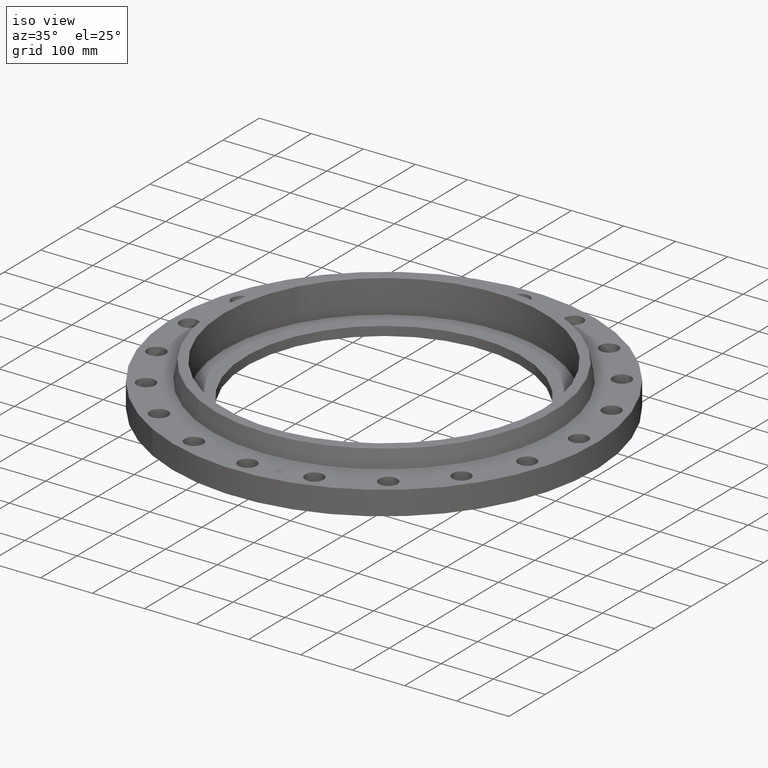
[diagram: clean part render]
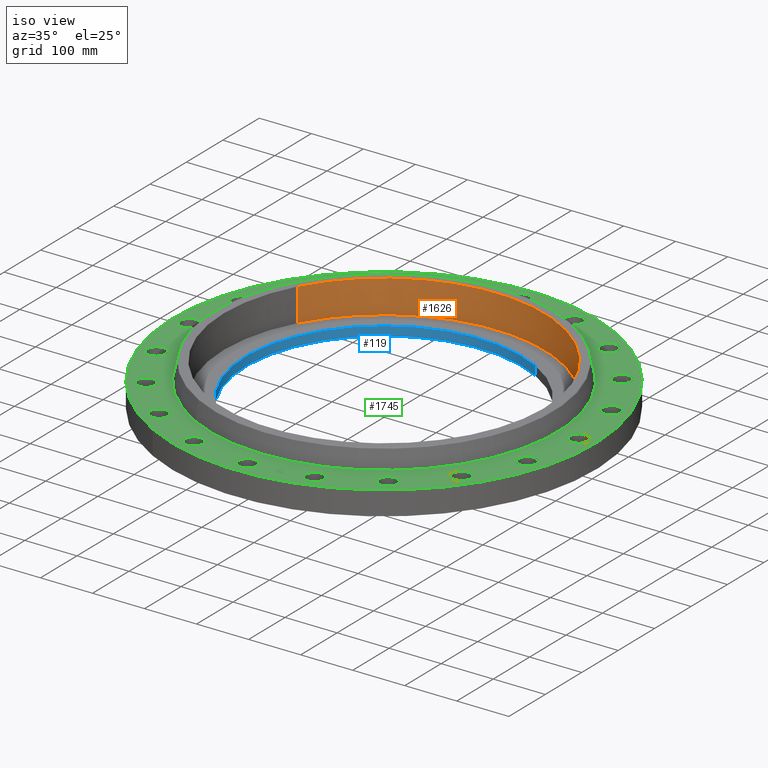
[diagram: same view with three faces highlighted in distinct colors, each labeled with its STEP entity id]
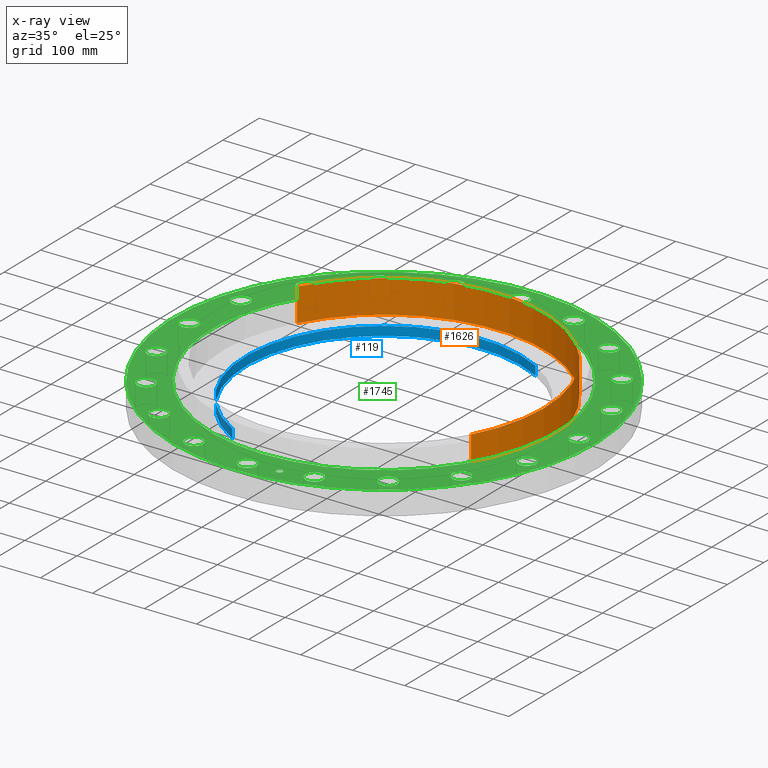
[diagram: x-ray of the same camera — body ghosted, the three highlighted faces saturated]
A machine part, iso view with three faces highlighted in distinct colors.
The next image is the same camera in x-ray (body ghosted, the three faces saturated) — at least one of them is partly hidden behind the body in this view.
Their STEP definitions:

[orange] entity #1626 — the highlighted cylindrical surface (partial cylindrical patch) has radius 307.975 mm, axis along (0, 0, -1).
#42=AXIS2_PLACEMENT_3D('Circle Axis2P3D',#40,#41,$) ;
#728=AXIS2_PLACEMENT_3D('Circle Axis2P3D',#726,#727,$) ;
#1608=AXIS2_PLACEMENT_3D('Cylinder Axis2P3D',#1605,#1606,#1607) ;
#40=CARTESIAN_POINT('Axis2P3D Location',(0.,-6.99353086378E-017,0.690000000003)) ;
#44=CARTESIAN_POINT('Vertex',(-10.640688563,5.8130346556,0.690000000003)) ;
#46=CARTESIAN_POINT('Vertex',(10.640688563,-5.8130346556,0.690000000003)) ;
#726=CARTESIAN_POINT('Axis2P3D Location',(2.79741234551E-016,0.,3.19000000001)) ;
#730=CARTESIAN_POINT('Vertex',(-10.640688563,5.8130346556,3.19000000001)) ;
#732=CARTESIAN_POINT('Vertex',(10.640688563,-5.8130346556,3.19000000001)) ;
#1605=CARTESIAN_POINT('Axis2P3D Location',(0.,-6.99353086378E-017,3.18606299214)) ;
#1610=CARTESIAN_POINT('Line Origine',(-10.640688563,5.8130346556,1.94000000001)) ;
#1615=CARTESIAN_POINT('Line Origine',(10.640688563,-5.8130346556,1.94000000001)) ;
#41=DIRECTION('Axis2P3D Direction',(0.,0.,-0.0393700787402)) ;
#727=DIRECTION('Axis2P3D Direction',(0.,0.,-0.0393700787402)) ;
#1606=DIRECTION('Axis2P3D Direction',(0.,0.,-0.0393700787402)) ;
#1607=DIRECTION('Axis2P3D XDirection',(0.0345504945626,-0.0188750212049,0.)) ;
#1611=DIRECTION('Vector Direction',(0.,0.,-0.0393700787402)) ;
#1616=DIRECTION('Vector Direction',(0.,0.,-0.0393700787402)) ;
#1612=VECTOR('Line Direction',#1611,0.0393700787402) ;
#1617=VECTOR('Line Direction',#1616,0.0393700787402) ;
#1621=ORIENTED_EDGE('',*,*,#734,.F.) ;
#1622=ORIENTED_EDGE('',*,*,#1614,.F.) ;
#1623=ORIENTED_EDGE('',*,*,#48,.T.) ;
#1624=ORIENTED_EDGE('',*,*,#1619,.T.) ;
#1626=ADVANCED_FACE('PartBody',(#1625),#1609,.F.) ;
#43=CIRCLE('generated circle',#42,12.125) ;
#729=CIRCLE('generated circle',#728,12.125) ;
#1609=CYLINDRICAL_SURFACE('generated cylinder',#1608,12.125) ;
#48=EDGE_CURVE('',#45,#47,#43,.T.) ;
#734=EDGE_CURVE('',#731,#733,#729,.T.) ;
#1614=EDGE_CURVE('',#45,#731,#1613,.F.) ;
#1619=EDGE_CURVE('',#47,#733,#1618,.F.) ;
#1620=EDGE_LOOP('',(#1621,#1622,#1623,#1624)) ;
#1625=FACE_OUTER_BOUND('',#1620,.T.) ;
#1613=LINE('Line',#1610,#1612) ;
#1618=LINE('Line',#1615,#1617) ;
#45=VERTEX_POINT('',#44) ;
#47=VERTEX_POINT('',#46) ;
#731=VERTEX_POINT('',#730) ;
#733=VERTEX_POINT('',#732) ;

[blue] entity #119 — the highlighted cylindrical surface (partial cylindrical patch) has radius 265.913 mm, axis along (0, 0, -1).
#60=AXIS2_PLACEMENT_3D('Circle Axis2P3D',#58,#59,$) ;
#80=AXIS2_PLACEMENT_3D('Cylinder Axis2P3D',#77,#78,#79) ;
#110=AXIS2_PLACEMENT_3D('Circle Axis2P3D',#108,#109,$) ;
#58=CARTESIAN_POINT('Axis2P3D Location',(3.35689481461E-015,1.32877086412E-015,0.690000000003)) ;
#62=CARTESIAN_POINT('Vertex',(-5.01910596367,-9.18741184047,0.690000000003)) ;
#64=CARTESIAN_POINT('Vertex',(5.01910596367,9.18741184047,0.690000000003)) ;
#77=CARTESIAN_POINT('Axis2P3D Location',(0.,0.,1.59500000001)) ;
#82=CARTESIAN_POINT('Line Origine',(5.01910596367,9.18741184047,0.345000000001)) ;
#86=CARTESIAN_POINT('Vertex',(5.01910596367,9.18741184047,-9.00766775255E-014)) ;
#93=CARTESIAN_POINT('Vertex',(-5.01910596367,-9.18741184047,-9.00766775255E-014)) ;
#96=CARTESIAN_POINT('Line Origine',(-5.01910596367,-9.18741184047,0.345000000001)) ;
#108=CARTESIAN_POINT('Axis2P3D Location',(0.,0.,-9.00766775255E-014)) ;
#59=DIRECTION('Axis2P3D Direction',(0.,0.,-0.0393700787402)) ;
#78=DIRECTION('Axis2P3D Direction',(0.,0.,-0.0393700787402)) ;
#79=DIRECTION('Axis2P3D XDirection',(-0.0188750212049,-0.0345504945626,0.)) ;
#83=DIRECTION('Vector Direction',(0.,0.,-0.0393700787402)) ;
#97=DIRECTION('Vector Direction',(0.,0.,-0.0393700787402)) ;
#109=DIRECTION('Axis2P3D Direction',(0.,0.,-0.0393700787402)) ;
#84=VECTOR('Line Direction',#83,0.0393700787402) ;
#98=VECTOR('Line Direction',#97,0.0393700787402) ;
#114=ORIENTED_EDGE('',*,*,#100,.T.) ;
#115=ORIENTED_EDGE('',*,*,#112,.T.) ;
#116=ORIENTED_EDGE('',*,*,#88,.F.) ;
#117=ORIENTED_EDGE('',*,*,#66,.F.) ;
#119=ADVANCED_FACE('PartBody',(#118),#81,.F.) ;
#61=CIRCLE('generated circle',#60,10.469) ;
#111=CIRCLE('generated circle',#110,10.469) ;
#81=CYLINDRICAL_SURFACE('generated cylinder',#80,10.469) ;
#66=EDGE_CURVE('',#63,#65,#61,.T.) ;
#88=EDGE_CURVE('',#65,#87,#85,.T.) ;
#100=EDGE_CURVE('',#63,#94,#99,.T.) ;
#112=EDGE_CURVE('',#94,#87,#111,.T.) ;
#113=EDGE_LOOP('',(#114,#115,#116,#117)) ;
#118=FACE_OUTER_BOUND('',#113,.T.) ;
#85=LINE('Line',#82,#84) ;
#99=LINE('Line',#96,#98) ;
#63=VERTEX_POINT('',#62) ;
#65=VERTEX_POINT('',#64) ;
#87=VERTEX_POINT('',#86) ;
#94=VERTEX_POINT('',#93) ;

[green] entity #1745 — the highlighted planar face has unit normal (0, 0, -1).
#545=AXIS2_PLACEMENT_3D('Circle Axis2P3D',#543,#544,$) ;
#564=AXIS2_PLACEMENT_3D('Circle Axis2P3D',#562,#563,$) ;
#581=AXIS2_PLACEMENT_3D('Circle Axis2P3D',#579,#580,$) ;
#616=AXIS2_PLACEMENT_3D('Circle Axis2P3D',#614,#615,$) ;
#766=AXIS2_PLACEMENT_3D('Circle Axis2P3D',#764,#765,$) ;
#778=AXIS2_PLACEMENT_3D('Circle Axis2P3D',#776,#777,$) ;
#809=AXIS2_PLACEMENT_3D('Circle Axis2P3D',#807,#808,$) ;
#821=AXIS2_PLACEMENT_3D('Circle Axis2P3D',#819,#820,$) ;
#852=AXIS2_PLACEMENT_3D('Circle Axis2P3D',#850,#851,$) ;
#864=AXIS2_PLACEMENT_3D('Circle Axis2P3D',#862,#863,$) ;
#895=AXIS2_PLACEMENT_3D('Circle Axis2P3D',#893,#894,$) ;
#907=AXIS2_PLACEMENT_3D('Circle Axis2P3D',#905,#906,$) ;
#938=AXIS2_PLACEMENT_3D('Circle Axis2P3D',#936,#937,$) ;
#950=AXIS2_PLACEMENT_3D('Circle Axis2P3D',#948,#949,$) ;
#981=AXIS2_PLACEMENT_3D('Circle Axis2P3D',#979,#980,$) ;
#993=AXIS2_PLACEMENT_3D('Circle Axis2P3D',#991,#992,$) ;
#1024=AXIS2_PLACEMENT_3D('Circle Axis2P3D',#1022,#1023,$) ;
#1036=AXIS2_PLACEMENT_3D('Circle Axis2P3D',#1034,#1035,$) ;
#1067=AXIS2_PLACEMENT_3D('Circle Axis2P3D',#1065,#1066,$) ;
#1079=AXIS2_PLACEMENT_3D('Circle Axis2P3D',#1077,#1078,$) ;
#1110=AXIS2_PLACEMENT_3D('Circle Axis2P3D',#1108,#1109,$) ;
#1122=AXIS2_PLACEMENT_3D('Circle Axis2P3D',#1120,#1121,$) ;
#1153=AXIS2_PLACEMENT_3D('Circle Axis2P3D',#1151,#1152,$) ;
#1165=AXIS2_PLACEMENT_3D('Circle Axis2P3D',#1163,#1164,$) ;
#1196=AXIS2_PLACEMENT_3D('Circle Axis2P3D',#1194,#1195,$) ;
#1208=AXIS2_PLACEMENT_3D('Circle Axis2P3D',#1206,#1207,$) ;
#1239=AXIS2_PLACEMENT_3D('Circle Axis2P3D',#1237,#1238,$) ;
#1251=AXIS2_PLACEMENT_3D('Circle Axis2P3D',#1249,#1250,$) ;
#1282=AXIS2_PLACEMENT_3D('Circle Axis2P3D',#1280,#1281,$) ;
#1294=AXIS2_PLACEMENT_3D('Circle Axis2P3D',#1292,#1293,$) ;
#1325=AXIS2_PLACEMENT_3D('Circle Axis2P3D',#1323,#1324,$) ;
#1337=AXIS2_PLACEMENT_3D('Circle Axis2P3D',#1335,#1336,$) ;
#1368=AXIS2_PLACEMENT_3D('Circle Axis2P3D',#1366,#1367,$) ;
#1380=AXIS2_PLACEMENT_3D('Circle Axis2P3D',#1378,#1379,$) ;
#1411=AXIS2_PLACEMENT_3D('Circle Axis2P3D',#1409,#1410,$) ;
#1423=AXIS2_PLACEMENT_3D('Circle Axis2P3D',#1421,#1422,$) ;
#1454=AXIS2_PLACEMENT_3D('Circle Axis2P3D',#1452,#1453,$) ;
#1466=AXIS2_PLACEMENT_3D('Circle Axis2P3D',#1464,#1465,$) ;
#1497=AXIS2_PLACEMENT_3D('Circle Axis2P3D',#1495,#1496,$) ;
#1509=AXIS2_PLACEMENT_3D('Circle Axis2P3D',#1507,#1508,$) ;
#1540=AXIS2_PLACEMENT_3D('Circle Axis2P3D',#1538,#1539,$) ;
#1552=AXIS2_PLACEMENT_3D('Circle Axis2P3D',#1550,#1551,$) ;
#1583=AXIS2_PLACEMENT_3D('Circle Axis2P3D',#1581,#1582,$) ;
#1595=AXIS2_PLACEMENT_3D('Circle Axis2P3D',#1593,#1594,$) ;
#1637=AXIS2_PLACEMENT_3D('Plane Axis2P3D',#1634,#1635,#1636) ;
#1729=AXIS2_PLACEMENT_3D('Circle Axis2P3D',#1727,#1728,$) ;
#1738=AXIS2_PLACEMENT_3D('Circle Axis2P3D',#1736,#1737,$) ;
#540=CARTESIAN_POINT('Vertex',(-7.6708086177,-14.0413209903,1.81000000001)) ;
#543=CARTESIAN_POINT('Axis2P3D Location',(0.,0.,1.81000000001)) ;
#547=CARTESIAN_POINT('Vertex',(7.6708086177,14.0413209903,1.81000000001)) ;
#562=CARTESIAN_POINT('Axis2P3D Location',(0.,0.,1.81000000001)) ;
#579=CARTESIAN_POINT('Axis2P3D Location',(0.,0.,1.81000000001)) ;
#583=CARTESIAN_POINT('Vertex',(6.28543468175,11.5054110106,1.81000000001)) ;
#585=CARTESIAN_POINT('Vertex',(-6.28543468175,-11.5054110106,1.81000000001)) ;
#614=CARTESIAN_POINT('Axis2P3D Location',(0.,0.,1.81000000001)) ;
#754=CARTESIAN_POINT('Vertex',(14.70620268,4.43050739573,1.81000000001)) ;
#761=CARTESIAN_POINT('Vertex',(13.3499645508,4.68549393836,1.81000000001)) ;
#764=CARTESIAN_POINT('Axis2P3D Location',(14.0280836154,4.55800066705,1.81000000001)) ;
#776=CARTESIAN_POINT('Axis2P3D Location',(14.0280836154,4.55800066705,1.81000000001)) ;
#797=CARTESIAN_POINT('Vertex',(12.6173278098,8.75812948005,1.81000000001)) ;
#804=CARTESIAN_POINT('Vertex',(11.2486735244,8.58153546265,1.81000000001)) ;
#807=CARTESIAN_POINT('Axis2P3D Location',(11.9330006671,8.66983247135,1.81000000001)) ;
#819=CARTESIAN_POINT('Axis2P3D Location',(11.9330006671,8.66983247135,1.81000000001)) ;
#840=CARTESIAN_POINT('Vertex',(9.29338098346,12.2284448294,1.81000000001)) ;
#847=CARTESIAN_POINT('Vertex',(8.04628395923,11.6375565048,1.81000000001)) ;
#850=CARTESIAN_POINT('Axis2P3D Location',(8.66983247135,11.9330006671,1.81000000001)) ;
#862=CARTESIAN_POINT('Axis2P3D Location',(8.66983247135,11.9330006671,1.81000000001)) ;
#883=CARTESIAN_POINT('Vertex',(5.05973327568,14.5017547982,1.81000000001)) ;
#890=CARTESIAN_POINT('Vertex',(4.05626805842,13.5544124326,1.81000000001)) ;
#893=CARTESIAN_POINT('Axis2P3D Location',(4.55800066705,14.0280836154,1.81000000001)) ;
#905=CARTESIAN_POINT('Axis2P3D Location',(4.55800066705,14.0280836154,1.81000000001)) ;
#926=CARTESIAN_POINT('Vertex',(0.330803621638,15.3555319678,1.81000000001)) ;
#933=CARTESIAN_POINT('Vertex',(-0.330803621638,14.1444680324,1.81000000001)) ;
#936=CARTESIAN_POINT('Axis2P3D Location',(-1.58101627338E-014,14.7500000001,1.81000000001)) ;
#948=CARTESIAN_POINT('Axis2P3D Location',(-1.58101627338E-014,14.7500000001,1.81000000001)) ;
#969=CARTESIAN_POINT('Vertex',(-4.43050739573,14.70620268,1.81000000001)) ;
#976=CARTESIAN_POINT('Vertex',(-4.68549393836,13.3499645508,1.81000000001)) ;
#979=CARTESIAN_POINT('Axis2P3D Location',(-4.55800066705,14.0280836154,1.81000000001)) ;
#991=CARTESIAN_POINT('Axis2P3D Location',(-4.55800066705,14.0280836154,1.81000000001)) ;
#1012=CARTESIAN_POINT('Vertex',(-8.75812948005,12.6173278098,1.81000000001)) ;
#1019=CARTESIAN_POINT('Vertex',(-8.58153546265,11.2486735244,1.81000000001)) ;
#1022=CARTESIAN_POINT('Axis2P3D Location',(-8.66983247135,11.9330006671,1.81000000001)) ;
#1034=CARTESIAN_POINT('Axis2P3D Location',(-8.66983247135,11.9330006671,1.81000000001)) ;
#1055=CARTESIAN_POINT('Vertex',(-12.2284448294,9.29338098346,1.81000000001)) ;
#1062=CARTESIAN_POINT('Vertex',(-11.6375565048,8.04628395923,1.81000000001)) ;
#1065=CARTESIAN_POINT('Axis2P3D Location',(-11.9330006671,8.66983247135,1.81000000001)) ;
#1077=CARTESIAN_POINT('Axis2P3D Location',(-11.9330006671,8.66983247135,1.81000000001)) ;
#1098=CARTESIAN_POINT('Vertex',(-14.5017547982,5.05973327568,1.81000000001)) ;
#1105=CARTESIAN_POINT('Vertex',(-13.5544124326,4.05626805842,1.81000000001)) ;
#1108=CARTESIAN_POINT('Axis2P3D Location',(-14.0280836154,4.55800066705,1.81000000001)) ;
#1120=CARTESIAN_POINT('Axis2P3D Location',(-14.0280836154,4.55800066705,1.81000000001)) ;
#1141=CARTESIAN_POINT('Vertex',(-15.3555319678,0.330803621638,1.81000000001)) ;
#1148=CARTESIAN_POINT('Vertex',(-14.1444680324,-0.330803621638,1.81000000001)) ;
#1151=CARTESIAN_POINT('Axis2P3D Location',(-14.7500000001,-8.35666987406E-015,1.81000000001)) ;
#1163=CARTESIAN_POINT('Axis2P3D Location',(-14.7500000001,-8.35666987406E-015,1.81000000001)) ;
#1184=CARTESIAN_POINT('Vertex',(-14.70620268,-4.43050739573,1.81000000001)) ;
#1191=CARTESIAN_POINT('Vertex',(-13.3499645508,-4.68549393836,1.81000000001)) ;
#1194=CARTESIAN_POINT('Axis2P3D Location',(-14.0280836154,-4.55800066705,1.81000000001)) ;
#1206=CARTESIAN_POINT('Axis2P3D Location',(-14.0280836154,-4.55800066705,1.81000000001)) ;
#1227=CARTESIAN_POINT('Vertex',(-12.6173278098,-8.75812948005,1.81000000001)) ;
#1234=CARTESIAN_POINT('Vertex',(-11.2486735244,-8.58153546265,1.81000000001)) ;
#1237=CARTESIAN_POINT('Axis2P3D Location',(-11.9330006671,-8.66983247135,1.81000000001)) ;
#1249=CARTESIAN_POINT('Axis2P3D Location',(-11.9330006671,-8.66983247135,1.81000000001)) ;
#1270=CARTESIAN_POINT('Vertex',(-9.29338098346,-12.2284448294,1.81000000001)) ;
#1277=CARTESIAN_POINT('Vertex',(-8.04628395923,-11.6375565048,1.81000000001)) ;
#1280=CARTESIAN_POINT('Axis2P3D Location',(-8.66983247135,-11.9330006671,1.81000000001)) ;
#1292=CARTESIAN_POINT('Axis2P3D Location',(-8.66983247135,-11.9330006671,1.81000000001)) ;
#1313=CARTESIAN_POINT('Vertex',(-5.05973327568,-14.5017547982,1.81000000001)) ;
#1320=CARTESIAN_POINT('Vertex',(-4.05626805842,-13.5544124326,1.81000000001)) ;
#1323=CARTESIAN_POINT('Axis2P3D Location',(-4.55800066705,-14.0280836154,1.81000000001)) ;
#1335=CARTESIAN_POINT('Axis2P3D Location',(-4.55800066705,-14.0280836154,1.81000000001)) ;
#1356=CARTESIAN_POINT('Vertex',(-0.330803621638,-15.3555319678,1.81000000001)) ;
#1363=CARTESIAN_POINT('Vertex',(0.330803621638,-14.1444680324,1.81000000001)) ;
#1366=CARTESIAN_POINT('Axis2P3D Location',(4.17833493703E-015,-14.7500000001,1.81000000001)) ;
#1378=CARTESIAN_POINT('Axis2P3D Location',(4.17833493703E-015,-14.7500000001,1.81000000001)) ;
#1399=CARTESIAN_POINT('Vertex',(4.43050739573,-14.70620268,1.81000000001)) ;
#1406=CARTESIAN_POINT('Vertex',(4.68549393836,-13.3499645508,1.81000000001)) ;
#1409=CARTESIAN_POINT('Axis2P3D Location',(4.55800066705,-14.0280836154,1.81000000001)) ;
#1421=CARTESIAN_POINT('Axis2P3D Location',(4.55800066705,-14.0280836154,1.81000000001)) ;
#1442=CARTESIAN_POINT('Vertex',(8.75812948005,-12.6173278098,1.81000000001)) ;
#1449=CARTESIAN_POINT('Vertex',(8.58153546265,-11.2486735244,1.81000000001)) ;
#1452=CARTESIAN_POINT('Axis2P3D Location',(8.66983247135,-11.9330006671,1.81000000001)) ;
#1464=CARTESIAN_POINT('Axis2P3D Location',(8.66983247135,-11.9330006671,1.81000000001)) ;
#1485=CARTESIAN_POINT('Vertex',(12.2284448294,-9.29338098346,1.81000000001)) ;
#1492=CARTESIAN_POINT('Vertex',(11.6375565048,-8.04628395923,1.81000000001)) ;
#1495=CARTESIAN_POINT('Axis2P3D Location',(11.9330006671,-8.66983247135,1.81000000001)) ;
#1507=CARTESIAN_POINT('Axis2P3D Location',(11.9330006671,-8.66983247135,1.81000000001)) ;
#1528=CARTESIAN_POINT('Vertex',(14.5017547982,-5.05973327568,1.81000000001)) ;
#1535=CARTESIAN_POINT('Vertex',(13.5544124326,-4.05626805842,1.81000000001)) ;
#1538=CARTESIAN_POINT('Axis2P3D Location',(14.0280836154,-4.55800066705,1.81000000001)) ;
#1550=CARTESIAN_POINT('Axis2P3D Location',(14.0280836154,-4.55800066705,1.81000000001)) ;
#1571=CARTESIAN_POINT('Vertex',(14.1444680324,0.330803621638,1.81000000001)) ;
#1578=CARTESIAN_POINT('Vertex',(15.3555319678,-0.330803621638,1.81000000001)) ;
#1581=CARTESIAN_POINT('Axis2P3D Location',(14.7500000001,0.,1.81000000001)) ;
#1593=CARTESIAN_POINT('Axis2P3D Location',(14.7500000001,0.,1.81000000001)) ;
#1634=CARTESIAN_POINT('Axis2P3D Location',(0.,16.0000000001,1.81000000001)) ;
#1727=CARTESIAN_POINT('Axis2P3D Location',(2.30740835935,-14.5684030238,1.81000000001)) ;
#1731=CARTESIAN_POINT('Vertex',(2.55186122365,-14.5296854937,1.81000000001)) ;
#1733=CARTESIAN_POINT('Vertex',(2.06295549505,-14.6071205539,1.81000000001)) ;
#1736=CARTESIAN_POINT('Axis2P3D Location',(2.30740835935,-14.5684030238,1.81000000001)) ;
#544=DIRECTION('Axis2P3D Direction',(0.,0.,-0.0393700787402)) ;
#563=DIRECTION('Axis2P3D Direction',(0.,0.,-0.0393700787402)) ;
#580=DIRECTION('Axis2P3D Direction',(0.,0.,-0.0393700787402)) ;
#615=DIRECTION('Axis2P3D Direction',(0.,0.,-0.0393700787402)) ;
#765=DIRECTION('Axis2P3D Direction',(0.,0.,-0.0393700787402)) ;
#777=DIRECTION('Axis2P3D Direction',(0.,0.,-0.0393700787402)) ;
#808=DIRECTION('Axis2P3D Direction',(0.,0.,-0.0393700787402)) ;
#820=DIRECTION('Axis2P3D Direction',(0.,0.,-0.0393700787402)) ;
#851=DIRECTION('Axis2P3D Direction',(0.,0.,-0.0393700787402)) ;
#863=DIRECTION('Axis2P3D Direction',(0.,0.,-0.0393700787402)) ;
#894=DIRECTION('Axis2P3D Direction',(0.,0.,-0.0393700787402)) ;
#906=DIRECTION('Axis2P3D Direction',(0.,0.,-0.0393700787402)) ;
#937=DIRECTION('Axis2P3D Direction',(0.,0.,-0.0393700787402)) ;
#949=DIRECTION('Axis2P3D Direction',(0.,0.,-0.0393700787402)) ;
#980=DIRECTION('Axis2P3D Direction',(0.,0.,-0.0393700787402)) ;
#992=DIRECTION('Axis2P3D Direction',(0.,0.,-0.0393700787402)) ;
#1023=DIRECTION('Axis2P3D Direction',(0.,0.,-0.0393700787402)) ;
#1035=DIRECTION('Axis2P3D Direction',(0.,0.,-0.0393700787402)) ;
#1066=DIRECTION('Axis2P3D Direction',(0.,0.,-0.0393700787402)) ;
#1078=DIRECTION('Axis2P3D Direction',(0.,0.,-0.0393700787402)) ;
#1109=DIRECTION('Axis2P3D Direction',(0.,0.,-0.0393700787402)) ;
#1121=DIRECTION('Axis2P3D Direction',(0.,0.,-0.0393700787402)) ;
#1152=DIRECTION('Axis2P3D Direction',(-0.,0.,-0.0393700787402)) ;
#1164=DIRECTION('Axis2P3D Direction',(-0.,0.,-0.0393700787402)) ;
#1195=DIRECTION('Axis2P3D Direction',(-0.,0.,-0.0393700787402)) ;
#1207=DIRECTION('Axis2P3D Direction',(-0.,0.,-0.0393700787402)) ;
#1238=DIRECTION('Axis2P3D Direction',(-0.,0.,-0.0393700787402)) ;
#1250=DIRECTION('Axis2P3D Direction',(-0.,0.,-0.0393700787402)) ;
#1281=DIRECTION('Axis2P3D Direction',(-0.,0.,-0.0393700787402)) ;
#1293=DIRECTION('Axis2P3D Direction',(-0.,0.,-0.0393700787402)) ;
#1324=DIRECTION('Axis2P3D Direction',(-0.,0.,-0.0393700787402)) ;
#1336=DIRECTION('Axis2P3D Direction',(-0.,0.,-0.0393700787402)) ;
#1367=DIRECTION('Axis2P3D Direction',(0.,-0.,-0.0393700787402)) ;
#1379=DIRECTION('Axis2P3D Direction',(0.,-0.,-0.0393700787402)) ;
#1410=DIRECTION('Axis2P3D Direction',(0.,-0.,-0.0393700787402)) ;
#1422=DIRECTION('Axis2P3D Direction',(0.,-0.,-0.0393700787402)) ;
#1453=DIRECTION('Axis2P3D Direction',(0.,-0.,-0.0393700787402)) ;
#1465=DIRECTION('Axis2P3D Direction',(0.,-0.,-0.0393700787402)) ;
#1496=DIRECTION('Axis2P3D Direction',(0.,-0.,-0.0393700787402)) ;
#1508=DIRECTION('Axis2P3D Direction',(0.,-0.,-0.0393700787402)) ;
#1539=DIRECTION('Axis2P3D Direction',(0.,-0.,-0.0393700787402)) ;
#1551=DIRECTION('Axis2P3D Direction',(0.,-0.,-0.0393700787402)) ;
#1582=DIRECTION('Axis2P3D Direction',(0.,-0.,-0.0393700787402)) ;
#1594=DIRECTION('Axis2P3D Direction',(0.,-0.,-0.0393700787402)) ;
#1635=DIRECTION('Axis2P3D Direction',(0.,0.,-0.0393700787402)) ;
#1636=DIRECTION('Axis2P3D XDirection',(0.0393700787402,0.,0.)) ;
#1728=DIRECTION('Axis2P3D Direction',(0.,0.,-0.0393700787402)) ;
#1737=DIRECTION('Axis2P3D Direction',(0.,0.,-0.0393700787402)) ;
#1640=ORIENTED_EDGE('',*,*,#566,.F.) ;
#1641=ORIENTED_EDGE('',*,*,#549,.F.) ;
#1644=ORIENTED_EDGE('',*,*,#1585,.T.) ;
#1645=ORIENTED_EDGE('',*,*,#1597,.T.) ;
#1648=ORIENTED_EDGE('',*,*,#618,.T.) ;
#1649=ORIENTED_EDGE('',*,*,#587,.T.) ;
#1652=ORIENTED_EDGE('',*,*,#1542,.T.) ;
#1653=ORIENTED_EDGE('',*,*,#1554,.T.) ;
#1656=ORIENTED_EDGE('',*,*,#1499,.T.) ;
#1657=ORIENTED_EDGE('',*,*,#1511,.T.) ;
#1660=ORIENTED_EDGE('',*,*,#1456,.T.) ;
#1661=ORIENTED_EDGE('',*,*,#1468,.T.) ;
#1664=ORIENTED_EDGE('',*,*,#1413,.T.) ;
#1665=ORIENTED_EDGE('',*,*,#1425,.T.) ;
#1668=ORIENTED_EDGE('',*,*,#1370,.T.) ;
#1669=ORIENTED_EDGE('',*,*,#1382,.T.) ;
#1672=ORIENTED_EDGE('',*,*,#1327,.T.) ;
#1673=ORIENTED_EDGE('',*,*,#1339,.T.) ;
#1676=ORIENTED_EDGE('',*,*,#1284,.T.) ;
#1677=ORIENTED_EDGE('',*,*,#1296,.T.) ;
#1680=ORIENTED_EDGE('',*,*,#1241,.T.) ;
#1681=ORIENTED_EDGE('',*,*,#1253,.T.) ;
#1684=ORIENTED_EDGE('',*,*,#1198,.T.) ;
#1685=ORIENTED_EDGE('',*,*,#1210,.T.) ;
#1688=ORIENTED_EDGE('',*,*,#1155,.T.) ;
#1689=ORIENTED_EDGE('',*,*,#1167,.T.) ;
#1692=ORIENTED_EDGE('',*,*,#1112,.T.) ;
#1693=ORIENTED_EDGE('',*,*,#1124,.T.) ;
#1696=ORIENTED_EDGE('',*,*,#1069,.T.) ;
#1697=ORIENTED_EDGE('',*,*,#1081,.T.) ;
#1700=ORIENTED_EDGE('',*,*,#1026,.T.) ;
#1701=ORIENTED_EDGE('',*,*,#1038,.T.) ;
#1704=ORIENTED_EDGE('',*,*,#983,.T.) ;
#1705=ORIENTED_EDGE('',*,*,#995,.T.) ;
#1708=ORIENTED_EDGE('',*,*,#940,.T.) ;
#1709=ORIENTED_EDGE('',*,*,#952,.T.) ;
#1712=ORIENTED_EDGE('',*,*,#897,.T.) ;
#1713=ORIENTED_EDGE('',*,*,#909,.T.) ;
#1716=ORIENTED_EDGE('',*,*,#854,.T.) ;
#1717=ORIENTED_EDGE('',*,*,#866,.T.) ;
#1720=ORIENTED_EDGE('',*,*,#811,.T.) ;
#1721=ORIENTED_EDGE('',*,*,#823,.T.) ;
#1724=ORIENTED_EDGE('',*,*,#768,.T.) ;
#1725=ORIENTED_EDGE('',*,*,#780,.T.) ;
#1742=ORIENTED_EDGE('',*,*,#1735,.T.) ;
#1743=ORIENTED_EDGE('',*,*,#1740,.T.) ;
#1646=FACE_BOUND('',#1643,.T.) ;
#1650=FACE_BOUND('',#1647,.T.) ;
#1654=FACE_BOUND('',#1651,.T.) ;
#1658=FACE_BOUND('',#1655,.T.) ;
#1662=FACE_BOUND('',#1659,.T.) ;
#1666=FACE_BOUND('',#1663,.T.) ;
#1670=FACE_BOUND('',#1667,.T.) ;
#1674=FACE_BOUND('',#1671,.T.) ;
#1678=FACE_BOUND('',#1675,.T.) ;
#1682=FACE_BOUND('',#1679,.T.) ;
#1686=FACE_BOUND('',#1683,.T.) ;
#1690=FACE_BOUND('',#1687,.T.) ;
#1694=FACE_BOUND('',#1691,.T.) ;
#1698=FACE_BOUND('',#1695,.T.) ;
#1702=FACE_BOUND('',#1699,.T.) ;
#1706=FACE_BOUND('',#1703,.T.) ;
#1710=FACE_BOUND('',#1707,.T.) ;
#1714=FACE_BOUND('',#1711,.T.) ;
#1718=FACE_BOUND('',#1715,.T.) ;
#1722=FACE_BOUND('',#1719,.T.) ;
#1726=FACE_BOUND('',#1723,.T.) ;
#1744=FACE_BOUND('',#1741,.T.) ;
#1745=ADVANCED_FACE('PartBody',(#1642,#1646,#1650,#1654,#1658,#1662,#1666,#1670,#1674,#1678,#1682,#1686,#1690,#1694,#1698,#1702,#1706,#1710,#1714,#1718,#1722,#1726,#1744),#1638,.F.) ;
#546=CIRCLE('generated circle',#545,16.0000000001) ;
#565=CIRCLE('generated circle',#564,16.0000000001) ;
#582=CIRCLE('generated circle',#581,13.1103459779) ;
#617=CIRCLE('generated circle',#616,13.1103459779) ;
#767=CIRCLE('generated circle',#766,0.690000000003) ;
#779=CIRCLE('generated circle',#778,0.690000000003) ;
#810=CIRCLE('generated circle',#809,0.690000000003) ;
#822=CIRCLE('generated circle',#821,0.690000000003) ;
#853=CIRCLE('generated circle',#852,0.690000000003) ;
#865=CIRCLE('generated circle',#864,0.690000000003) ;
#896=CIRCLE('generated circle',#895,0.690000000003) ;
#908=CIRCLE('generated circle',#907,0.690000000003) ;
#939=CIRCLE('generated circle',#938,0.690000000003) ;
#951=CIRCLE('generated circle',#950,0.690000000003) ;
#982=CIRCLE('generated circle',#981,0.690000000003) ;
#994=CIRCLE('generated circle',#993,0.690000000003) ;
#1025=CIRCLE('generated circle',#1024,0.690000000003) ;
#1037=CIRCLE('generated circle',#1036,0.690000000003) ;
#1068=CIRCLE('generated circle',#1067,0.690000000003) ;
#1080=CIRCLE('generated circle',#1079,0.690000000003) ;
#1111=CIRCLE('generated circle',#1110,0.690000000003) ;
#1123=CIRCLE('generated circle',#1122,0.690000000003) ;
#1154=CIRCLE('generated circle',#1153,0.690000000003) ;
#1166=CIRCLE('generated circle',#1165,0.690000000003) ;
#1197=CIRCLE('generated circle',#1196,0.690000000003) ;
#1209=CIRCLE('generated circle',#1208,0.690000000003) ;
#1240=CIRCLE('generated circle',#1239,0.690000000003) ;
#1252=CIRCLE('generated circle',#1251,0.690000000003) ;
#1283=CIRCLE('generated circle',#1282,0.690000000003) ;
#1295=CIRCLE('generated circle',#1294,0.690000000003) ;
#1326=CIRCLE('generated circle',#1325,0.690000000003) ;
#1338=CIRCLE('generated circle',#1337,0.690000000003) ;
#1369=CIRCLE('generated circle',#1368,0.690000000003) ;
#1381=CIRCLE('generated circle',#1380,0.690000000003) ;
#1412=CIRCLE('generated circle',#1411,0.690000000003) ;
#1424=CIRCLE('generated circle',#1423,0.690000000003) ;
#1455=CIRCLE('generated circle',#1454,0.690000000003) ;
#1467=CIRCLE('generated circle',#1466,0.690000000003) ;
#1498=CIRCLE('generated circle',#1497,0.690000000003) ;
#1510=CIRCLE('generated circle',#1509,0.690000000003) ;
#1541=CIRCLE('generated circle',#1540,0.690000000003) ;
#1553=CIRCLE('generated circle',#1552,0.690000000003) ;
#1584=CIRCLE('generated circle',#1583,0.690000000003) ;
#1596=CIRCLE('generated circle',#1595,0.690000000003) ;
#1730=CIRCLE('generated circle',#1729,0.247500000001) ;
#1739=CIRCLE('generated circle',#1738,0.247500000001) ;
#549=EDGE_CURVE('',#541,#548,#546,.T.) ;
#566=EDGE_CURVE('',#548,#541,#565,.T.) ;
#587=EDGE_CURVE('',#584,#586,#582,.T.) ;
#618=EDGE_CURVE('',#586,#584,#617,.T.) ;
#768=EDGE_CURVE('',#755,#762,#767,.T.) ;
#780=EDGE_CURVE('',#762,#755,#779,.T.) ;
#811=EDGE_CURVE('',#798,#805,#810,.T.) ;
#823=EDGE_CURVE('',#805,#798,#822,.T.) ;
#854=EDGE_CURVE('',#841,#848,#853,.T.) ;
#866=EDGE_CURVE('',#848,#841,#865,.T.) ;
#897=EDGE_CURVE('',#884,#891,#896,.T.) ;
#909=EDGE_CURVE('',#891,#884,#908,.T.) ;
#940=EDGE_CURVE('',#927,#934,#939,.T.) ;
#952=EDGE_CURVE('',#934,#927,#951,.T.) ;
#983=EDGE_CURVE('',#970,#977,#982,.T.) ;
#995=EDGE_CURVE('',#977,#970,#994,.T.) ;
#1026=EDGE_CURVE('',#1013,#1020,#1025,.T.) ;
#1038=EDGE_CURVE('',#1020,#1013,#1037,.T.) ;
#1069=EDGE_CURVE('',#1056,#1063,#1068,.T.) ;
#1081=EDGE_CURVE('',#1063,#1056,#1080,.T.) ;
#1112=EDGE_CURVE('',#1099,#1106,#1111,.T.) ;
#1124=EDGE_CURVE('',#1106,#1099,#1123,.T.) ;
#1155=EDGE_CURVE('',#1142,#1149,#1154,.T.) ;
#1167=EDGE_CURVE('',#1149,#1142,#1166,.T.) ;
#1198=EDGE_CURVE('',#1185,#1192,#1197,.T.) ;
#1210=EDGE_CURVE('',#1192,#1185,#1209,.T.) ;
#1241=EDGE_CURVE('',#1228,#1235,#1240,.T.) ;
#1253=EDGE_CURVE('',#1235,#1228,#1252,.T.) ;
#1284=EDGE_CURVE('',#1271,#1278,#1283,.T.) ;
#1296=EDGE_CURVE('',#1278,#1271,#1295,.T.) ;
#1327=EDGE_CURVE('',#1314,#1321,#1326,.T.) ;
#1339=EDGE_CURVE('',#1321,#1314,#1338,.T.) ;
#1370=EDGE_CURVE('',#1357,#1364,#1369,.T.) ;
#1382=EDGE_CURVE('',#1364,#1357,#1381,.T.) ;
#1413=EDGE_CURVE('',#1400,#1407,#1412,.T.) ;
#1425=EDGE_CURVE('',#1407,#1400,#1424,.T.) ;
#1456=EDGE_CURVE('',#1443,#1450,#1455,.T.) ;
#1468=EDGE_CURVE('',#1450,#1443,#1467,.T.) ;
#1499=EDGE_CURVE('',#1486,#1493,#1498,.T.) ;
#1511=EDGE_CURVE('',#1493,#1486,#1510,.T.) ;
#1542=EDGE_CURVE('',#1529,#1536,#1541,.T.) ;
#1554=EDGE_CURVE('',#1536,#1529,#1553,.T.) ;
#1585=EDGE_CURVE('',#1572,#1579,#1584,.T.) ;
#1597=EDGE_CURVE('',#1579,#1572,#1596,.T.) ;
#1735=EDGE_CURVE('',#1732,#1734,#1730,.T.) ;
#1740=EDGE_CURVE('',#1734,#1732,#1739,.T.) ;
#1639=EDGE_LOOP('',(#1640,#1641)) ;
#1643=EDGE_LOOP('',(#1644,#1645)) ;
#1647=EDGE_LOOP('',(#1648,#1649)) ;
#1651=EDGE_LOOP('',(#1652,#1653)) ;
#1655=EDGE_LOOP('',(#1656,#1657)) ;
#1659=EDGE_LOOP('',(#1660,#1661)) ;
#1663=EDGE_LOOP('',(#1664,#1665)) ;
#1667=EDGE_LOOP('',(#1668,#1669)) ;
#1671=EDGE_LOOP('',(#1672,#1673)) ;
#1675=EDGE_LOOP('',(#1676,#1677)) ;
#1679=EDGE_LOOP('',(#1680,#1681)) ;
#1683=EDGE_LOOP('',(#1684,#1685)) ;
#1687=EDGE_LOOP('',(#1688,#1689)) ;
#1691=EDGE_LOOP('',(#1692,#1693)) ;
#1695=EDGE_LOOP('',(#1696,#1697)) ;
#1699=EDGE_LOOP('',(#1700,#1701)) ;
#1703=EDGE_LOOP('',(#1704,#1705)) ;
#1707=EDGE_LOOP('',(#1708,#1709)) ;
#1711=EDGE_LOOP('',(#1712,#1713)) ;
#1715=EDGE_LOOP('',(#1716,#1717)) ;
#1719=EDGE_LOOP('',(#1720,#1721)) ;
#1723=EDGE_LOOP('',(#1724,#1725)) ;
#1741=EDGE_LOOP('',(#1742,#1743)) ;
#1642=FACE_OUTER_BOUND('',#1639,.T.) ;
#1638=PLANE('',#1637) ;
#541=VERTEX_POINT('',#540) ;
#548=VERTEX_POINT('',#547) ;
#584=VERTEX_POINT('',#583) ;
#586=VERTEX_POINT('',#585) ;
#755=VERTEX_POINT('',#754) ;
#762=VERTEX_POINT('',#761) ;
#798=VERTEX_POINT('',#797) ;
#805=VERTEX_POINT('',#804) ;
#841=VERTEX_POINT('',#840) ;
#848=VERTEX_POINT('',#847) ;
#884=VERTEX_POINT('',#883) ;
#891=VERTEX_POINT('',#890) ;
#927=VERTEX_POINT('',#926) ;
#934=VERTEX_POINT('',#933) ;
#970=VERTEX_POINT('',#969) ;
#977=VERTEX_POINT('',#976) ;
#1013=VERTEX_POINT('',#1012) ;
#1020=VERTEX_POINT('',#1019) ;
#1056=VERTEX_POINT('',#1055) ;
#1063=VERTEX_POINT('',#1062) ;
#1099=VERTEX_POINT('',#1098) ;
#1106=VERTEX_POINT('',#1105) ;
#1142=VERTEX_POINT('',#1141) ;
#1149=VERTEX_POINT('',#1148) ;
#1185=VERTEX_POINT('',#1184) ;
#1192=VERTEX_POINT('',#1191) ;
#1228=VERTEX_POINT('',#1227) ;
#1235=VERTEX_POINT('',#1234) ;
#1271=VERTEX_POINT('',#1270) ;
#1278=VERTEX_POINT('',#1277) ;
#1314=VERTEX_POINT('',#1313) ;
#1321=VERTEX_POINT('',#1320) ;
#1357=VERTEX_POINT('',#1356) ;
#1364=VERTEX_POINT('',#1363) ;
#1400=VERTEX_POINT('',#1399) ;
#1407=VERTEX_POINT('',#1406) ;
#1443=VERTEX_POINT('',#1442) ;
#1450=VERTEX_POINT('',#1449) ;
#1486=VERTEX_POINT('',#1485) ;
#1493=VERTEX_POINT('',#1492) ;
#1529=VERTEX_POINT('',#1528) ;
#1536=VERTEX_POINT('',#1535) ;
#1572=VERTEX_POINT('',#1571) ;
#1579=VERTEX_POINT('',#1578) ;
#1732=VERTEX_POINT('',#1731) ;
#1734=VERTEX_POINT('',#1733) ;